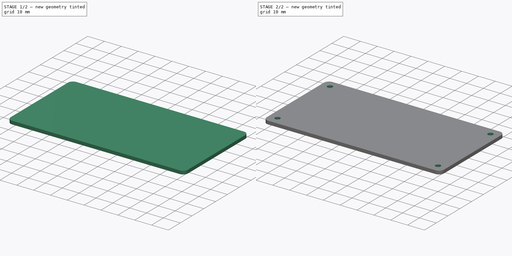
[diagram: build sequence overview — one tinted view per stage of 2, left to right]
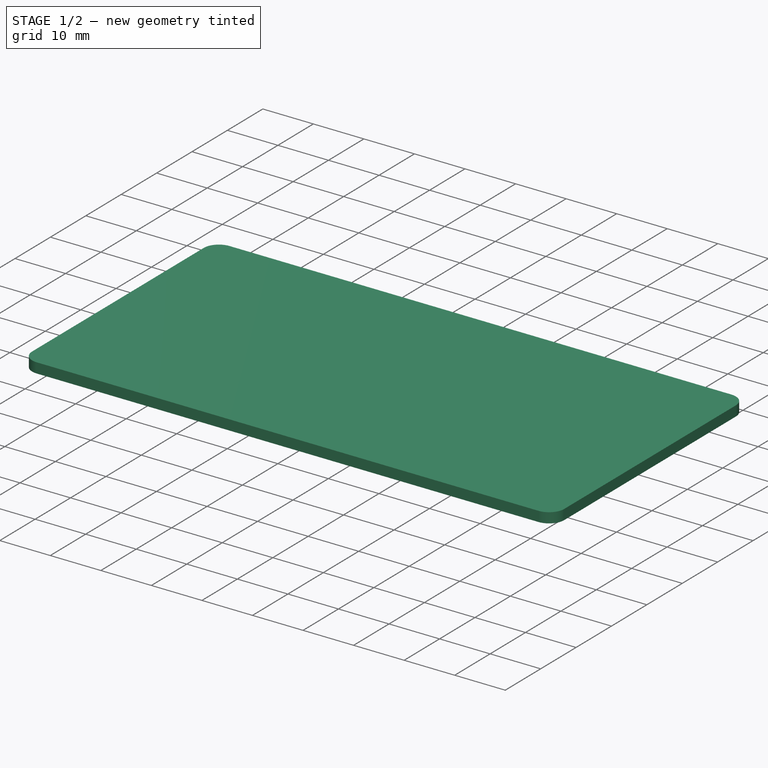
[diagram: stage 1 of 2 — iso view after this stage's code; geometry added in this stage tinted green]
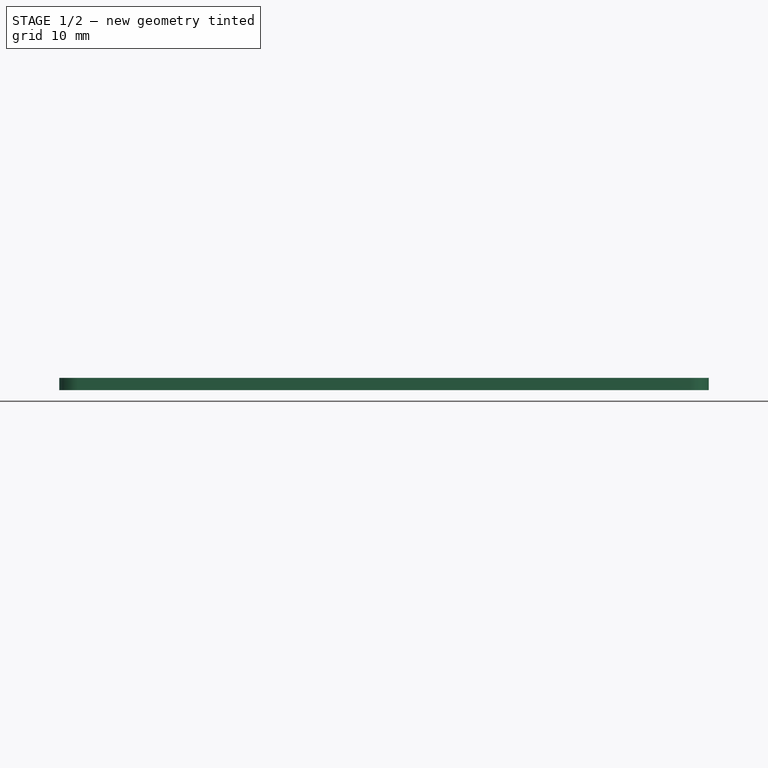
[diagram: stage 1 of 2 — front view after this stage's code; geometry added in this stage tinted green]
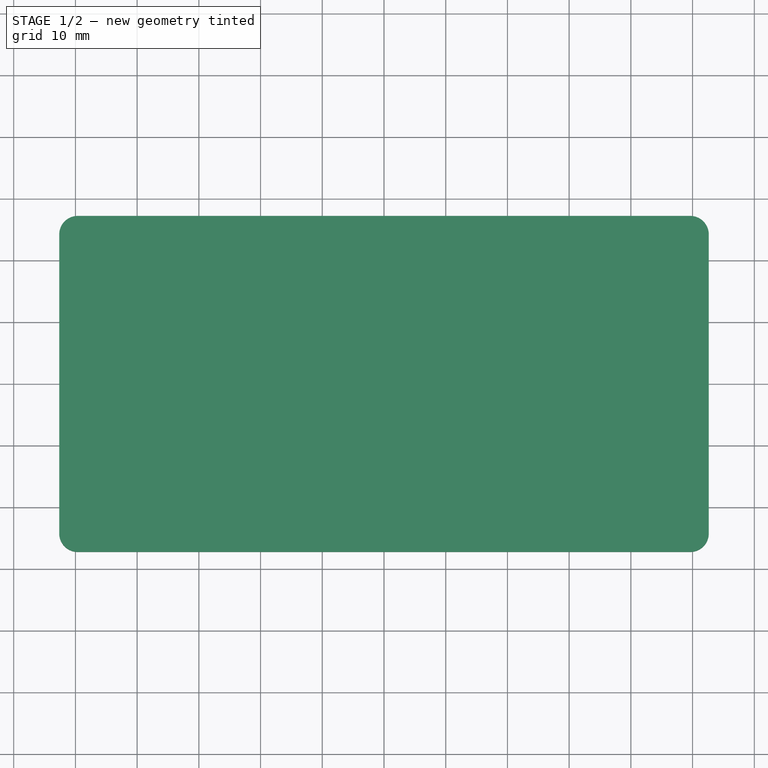
[diagram: stage 1 of 2 — top view after this stage's code; geometry added in this stage tinted green]
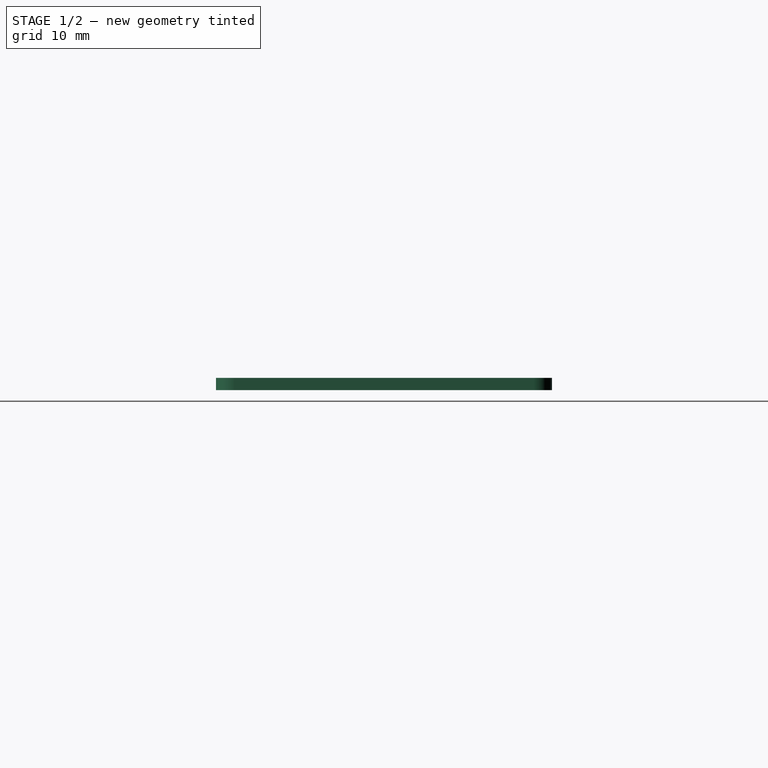
[diagram: stage 1 of 2 — right view after this stage's code; geometry added in this stage tinted green]
FCSTD DOCUMENT  (FreeCAD 1.0R39319 (Git))
Label: EPP-150_plate_guide
License: All rights reserved
LicenseURL: https://en.wikipedia.org/wiki/All_rights_reserved
objects: Sketcher::SketchObject×2, Spreadsheet::Sheet×1, PartDesign::Pad×1, PartDesign::Pocket×1, PartDesign::Body×1
note: 11 computed .brp shape members not serialized (recipe doc carries the construction recipe); baked Part::Feature solids carry a one-line shape summary decoded from their .brp

FEATURE [Spreadsheet::Sheet] Spreadsheet
  cells = A1='Holes width spacing; B1(HolesWidSpa)=95.25; A2='Holes depth spacing; B2(HolesDepSpa)=44.45; A3='Hole diameter; B3(HolesDia)=3; A4='spacer thickness; B4(SpacerThi)=2; A5='Spacer fillet; B5(SpacerFil)=3; A6='Wall thickness; B6(WallThi)=5; A7='Calculations; A8='Total width; B8(TotalWid)==HolesWidSpa + WallThi * 2; A9='Total depth; B9(TotalDep)==HolesDepSpa + WallThi * 2
FEATURE [Sketcher::SketchObject] Sketch
  ArcFitTolerance = 1e-06
  AttachmentSupport = -> [XY_Plane]
  FullyConstrained = true
  MakeInternals = false
  MapMode = 5
  expr: Constraints[23] = Spreadsheet.SpacerFil
  expr: Constraints[5] = Spreadsheet.TotalWid
  expr: Constraints[6] = Spreadsheet.TotalDep
  sketch-geometry (12):
    g0: LineSegment StartX=-52.625 StartY=24.225 StartZ=0 EndX=-52.625 EndY=-24.225 EndZ=0
    g1: LineSegment StartX=-49.625 StartY=-27.225 StartZ=0 EndX=49.625 EndY=-27.225 EndZ=0
    g2: LineSegment StartX=52.625 StartY=-24.225 StartZ=0 EndX=52.625 EndY=24.225 EndZ=0
    g3: LineSegment StartX=49.625 StartY=27.225 StartZ=0 EndX=-49.625 EndY=27.225 EndZ=0
    g4: ArcOfCircle CenterX=-49.625 CenterY=-24.225 CenterZ=0 NormalX=0 NormalY=0 NormalZ=1 AngleXU=0 Radius=3 StartAngle=3.14159 EndAngle=4.71239
    g5: GeomPoint [constr] X=-52.625 Y=-27.225 Z=0
    g6: ArcOfCircle CenterX=49.625 CenterY=-24.225 CenterZ=0 NormalX=0 NormalY=0 NormalZ=1 AngleXU=0 Radius=3 StartAngle=4.71239 EndAngle=6.28319
    g7: GeomPoint [constr] X=52.625 Y=-27.225 Z=0
    g8: ArcOfCircle CenterX=49.625 CenterY=24.225 CenterZ=0 NormalX=0 NormalY=0 NormalZ=1 AngleXU=0 Radius=3 StartAngle=7e-16 EndAngle=1.5708
    g9: GeomPoint [constr] X=52.625 Y=27.225 Z=0
    g10: ArcOfCircle CenterX=-49.625 CenterY=24.225 CenterZ=0 NormalX=0 NormalY=0 NormalZ=1 AngleXU=0 Radius=3 StartAngle=1.5708 EndAngle=3.14159
    g11: GeomPoint [constr] X=-52.625 Y=27.225 Z=0
  constraints (27):
    c: Vertical(g0)
    c: Vertical(g2)
    c: Horizontal(g1)
    c: Horizontal(g3)
    c: Symmetric(g9,g5,g-1)
    c: DistanceX(g5,g7) = 105.25
    c: DistanceY(g5,g11) = 54.45
    c: PointOnObject(g5,g0)
    c: PointOnObject(g5,g1)
    c: Tangent(g0,g4) = -1.5708
    c: Tangent(g1,g4) = -1.5708
    c: PointOnObject(g7,g1)
    c: PointOnObject(g7,g2)
    c: Tangent(g1,g6) = -1.5708
    c: Tangent(g2,g6) = -1.5708
    c: PointOnObject(g9,g2)
    c: PointOnObject(g9,g3)
    c: Tangent(g2,g8) = -1.5708
    c: Tangent(g3,g8) = -1.5708
    c: PointOnObject(g11,g3)
    c: PointOnObject(g11,g0)
    c: Tangent(g3,g10) = -1.5708
    c: Tangent(g0,g10) = -1.5708
    c: DistanceX(g0,g4) = 3
    c: Horizontal(g4,g6)
    c: Vertical(g4,g10)
    c: Horizontal(g10,g8)
FEATURE [PartDesign::Pad] Pad  label="MainMass"
  Direction = (0,0,1)
  Length = 2
  Length2 = 10
  Profile = -> Sketch
  ReferenceAxis = -> Sketch [N_Axis]
  Refine = true
  Suppressed = false
  Type = 0
  expr: Length = Spreadsheet.SpacerThi
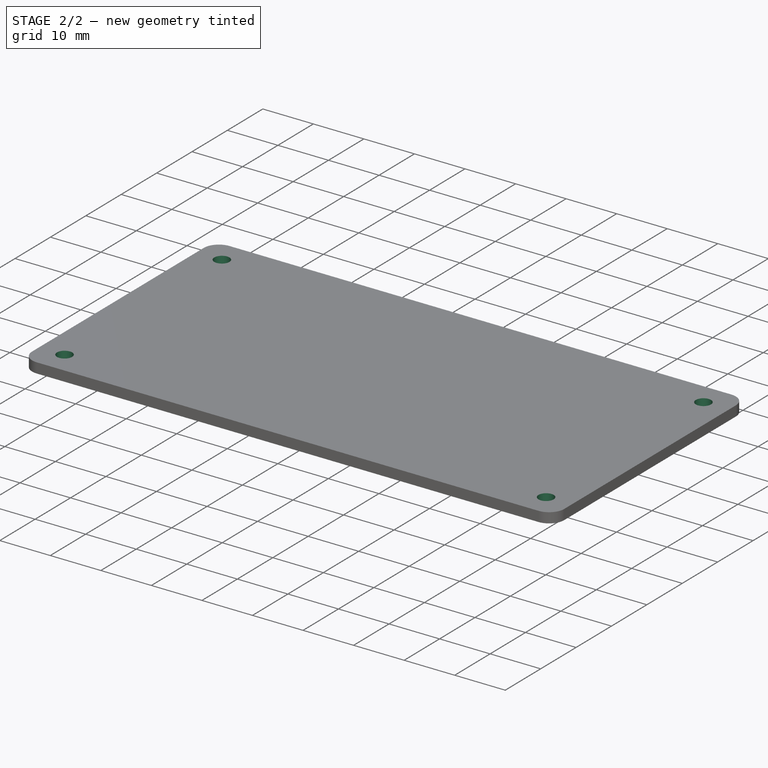
[diagram: stage 2 of 2 — iso view after this stage's code; geometry added in this stage tinted green]
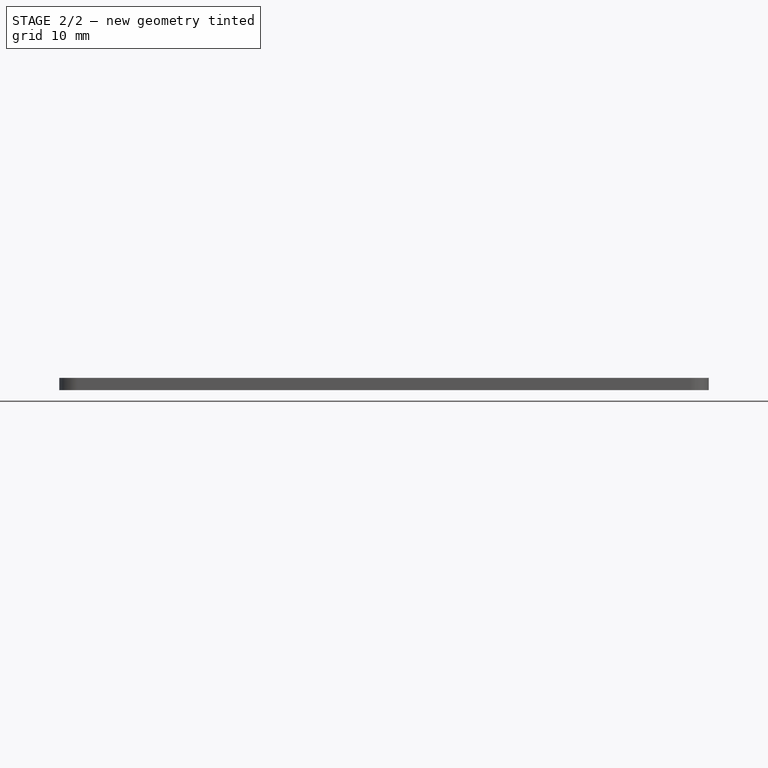
[diagram: stage 2 of 2 — front view after this stage's code; geometry added in this stage tinted green]
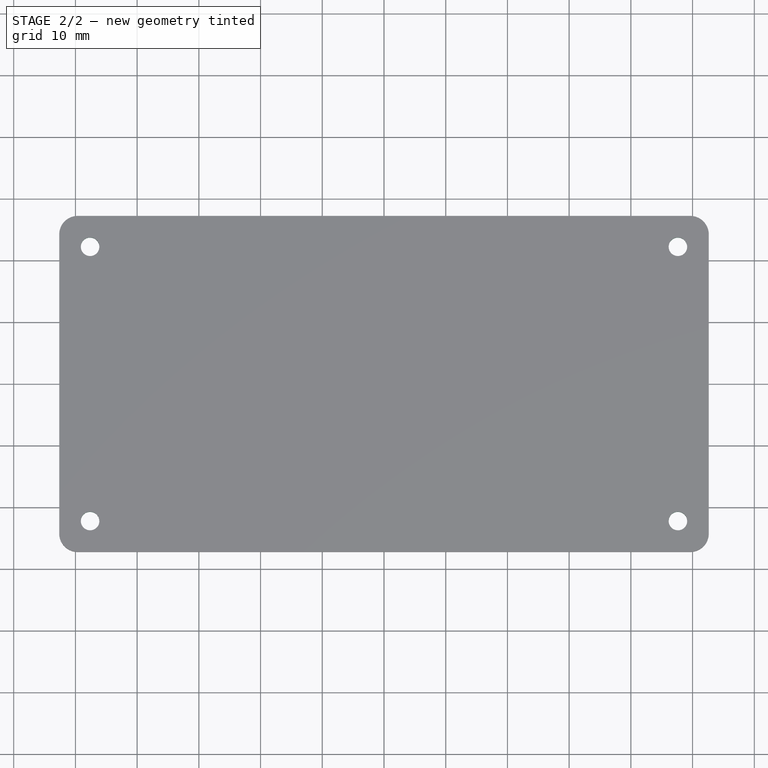
[diagram: stage 2 of 2 — top view after this stage's code; geometry added in this stage tinted green]
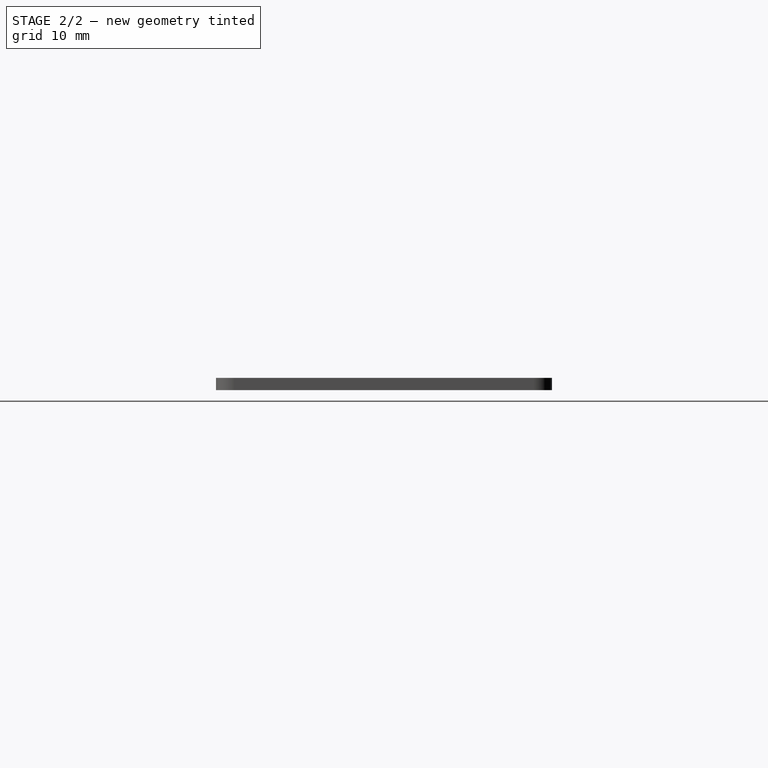
[diagram: stage 2 of 2 — right view after this stage's code; geometry added in this stage tinted green]
FEATURE [Sketcher::SketchObject] Sketch001
  ArcFitTolerance = 1e-06
  AttachmentSupport = -> [Pad]
  FullyConstrained = true
  MakeInternals = false
  MapMode = 5
  Placement = pos=(0,0,2) rot=(0,0,1;0rad)
  expr: Constraints[13] = Spreadsheet.HolesDia
  expr: Constraints[17] = Spreadsheet.HolesWidSpa
  expr: Constraints[18] = Spreadsheet.HolesDepSpa
  sketch-geometry (8):
    g0: Circle CenterX=-47.625 CenterY=-22.225 CenterZ=0 NormalX=0 NormalY=0 NormalZ=1 AngleXU=0 Radius=1.5
    g1: Circle CenterX=47.625 CenterY=-22.225 CenterZ=0 NormalX=0 NormalY=0 NormalZ=1 AngleXU=0 Radius=1.5
    g2: Circle CenterX=47.625 CenterY=22.225 CenterZ=0 NormalX=0 NormalY=0 NormalZ=1 AngleXU=0 Radius=1.5
    g3: Circle CenterX=-47.625 CenterY=22.225 CenterZ=0 NormalX=0 NormalY=0 NormalZ=1 AngleXU=0 Radius=1.5
    g4: LineSegment [constr] StartX=-47.625 StartY=22.225 StartZ=0 EndX=-47.625 EndY=-22.225 EndZ=0
    g5: LineSegment [constr] StartX=-47.625 StartY=-22.225 StartZ=0 EndX=47.625 EndY=-22.225 EndZ=0
    g6: LineSegment [constr] StartX=47.625 StartY=-22.225 StartZ=0 EndX=47.625 EndY=22.225 EndZ=0
    g7: LineSegment [constr] StartX=47.625 StartY=22.225 StartZ=0 EndX=-47.625 EndY=22.225 EndZ=0
  constraints (19):
    c: Coincident(g4,g5)
    c: Coincident(g5,g6)
    c: Coincident(g6,g7)
    c: Coincident(g7,g4)
    c: Vertical(g4)
    c: Vertical(g6)
    c: Horizontal(g5)
    c: Horizontal(g7)
    c: Symmetric(g6,g4,g-1)
    c: Coincident(g0,g4)
    c: Coincident(g5,g1)
    c: Coincident(g6,g2)
    c: Coincident(g4,g3)
    c: Diameter(g0) = 3
    c: Equal(g0,g3)
    c: Equal(g0,g2)
    c: Equal(g0,g1)
    c: DistanceX(g0,g1) = 95.25
    c: DistanceY(g0,g3) = 44.45
FEATURE [PartDesign::Pocket] Pocket
  BaseFeature = -> Pad
  Direction = (0,0,-1)
  Length = 5
  Length2 = 5
  Profile = -> Sketch001
  ReferenceAxis = -> Sketch001 [N_Axis]
  Refine = true
  Suppressed = false
  Type = 1
FEATURE [PartDesign::Body] Body
  AllowCompound = false
  Group = -> [Sketch,Pad,Sketch001,Pocket]
  Origin = -> Origin
  Tip = -> Pocket
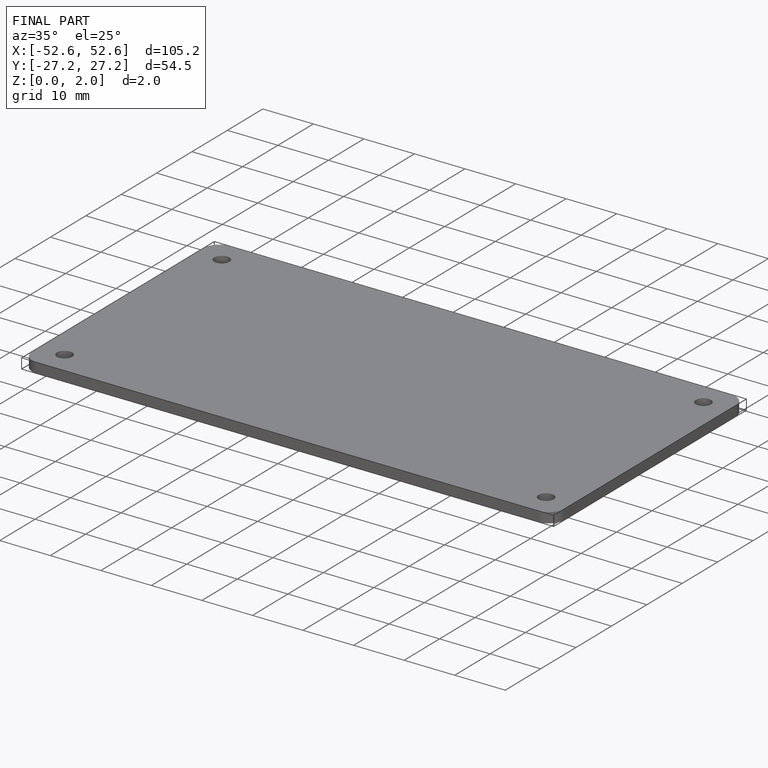
[diagram: finished part — iso view with bounding-box wireframe]
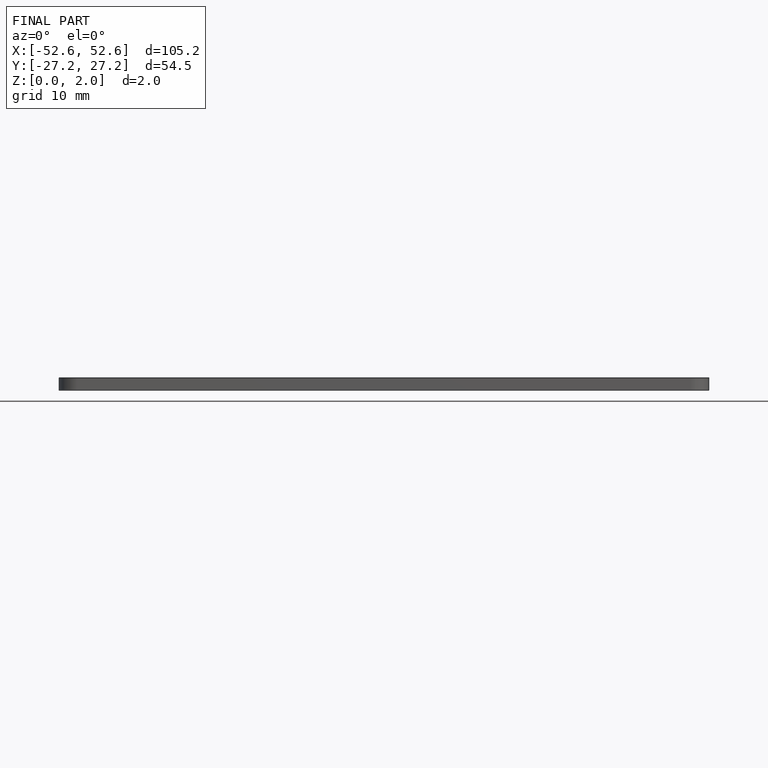
[diagram: finished part — front view with bounding-box wireframe]
